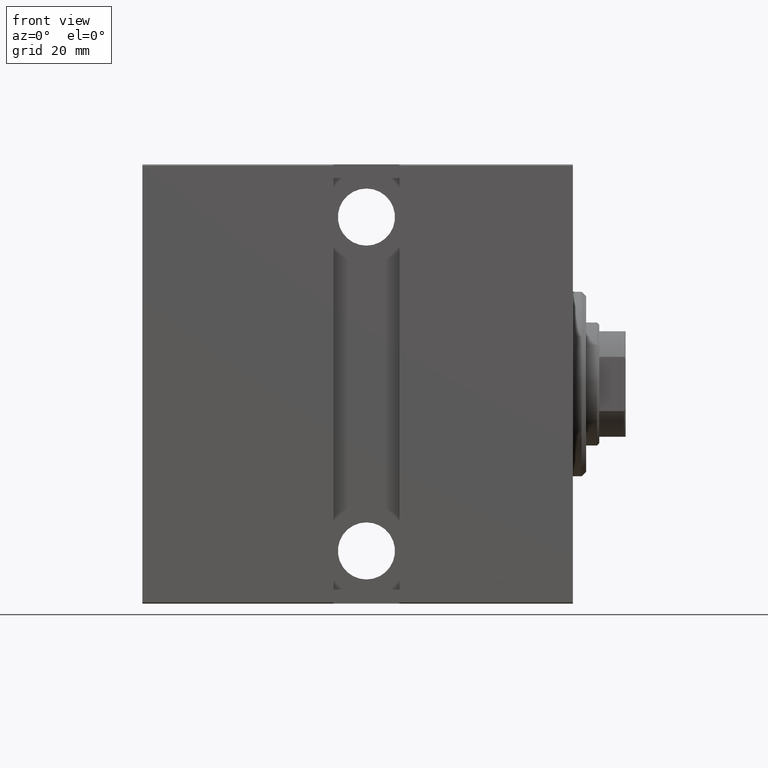
[diagram: clean part render]
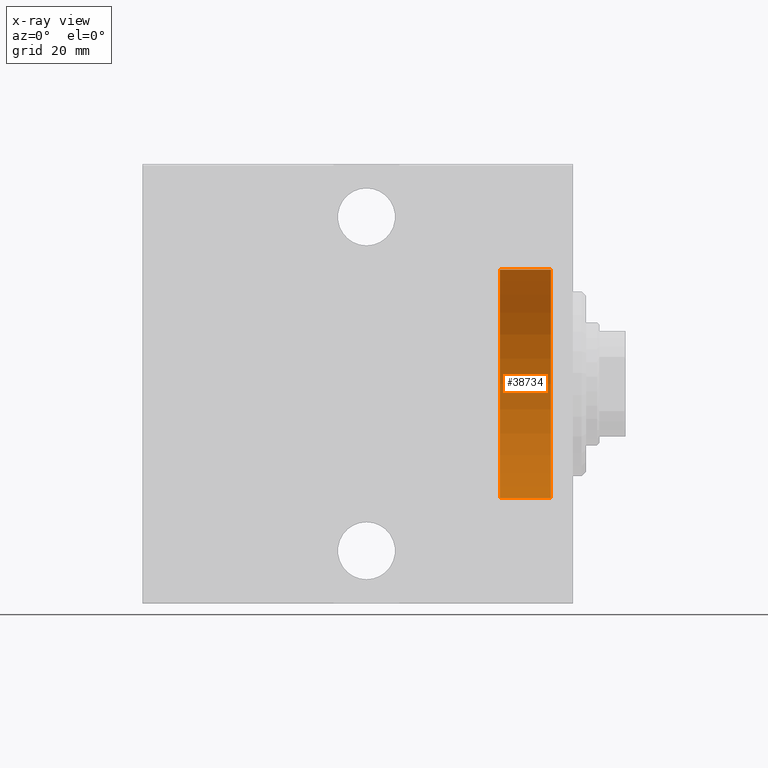
[diagram: x-ray — body ghosted, one internal face saturated and labeled with its STEP entity id]
A machine part, front view, then the same camera in x-ray: the body is ghosted and one INTERNAL B-rep face — a face not visible from any outside direction — is saturated and labeled: STEP entity #38734.
In plain terms, the highlighted cylindrical surface (partial cylindrical patch) has radius 26 mm, axis along (1, 0, 0).
Its self-contained STEP definition (entity closure, byte-faithful):
#50 = LINE ( 'NONE', #26042, #34952 ) ;
#87 = CARTESIAN_POINT ( 'NONE',  ( -16.60000000000000142, 3.184081677783117796E-15, 26.00000000000000355 ) ) ;
#1064 = DIRECTION ( 'NONE',  ( 1.000000000000000000, -0.000000000000000000, -0.000000000000000000 ) ) ;
#5234 = CARTESIAN_POINT ( 'NONE',  ( -5.000000000000000888, 0.000000000000000000, 0.000000000000000000 ) ) ;
#6214 = VERTEX_POINT ( 'NONE', #10892 ) ;
#7452 = DIRECTION ( 'NONE',  ( -1.000000000000000000, 0.000000000000000000, 0.000000000000000000 ) ) ;
#10408 = AXIS2_PLACEMENT_3D ( 'NONE', #23698, #7452, #10694 ) ;
#10694 = DIRECTION ( 'NONE',  ( 0.000000000000000000, 0.000000000000000000, 1.000000000000000000 ) ) ;
#10892 = CARTESIAN_POINT ( 'NONE',  ( -16.60000000000000142, 0.000000000000000000, -26.00000000000000355 ) ) ;
#11445 = EDGE_CURVE ( 'NONE', #6214, #39080, #50, .T. ) ;
#13126 = CIRCLE ( 'NONE', #35290, 26.00000000000000355 ) ;
#14140 = DIRECTION ( 'NONE',  ( 1.000000000000000000, -0.000000000000000000, -0.000000000000000000 ) ) ;
#16028 = DIRECTION ( 'NONE',  ( -1.000000000000000000, -0.000000000000000000, -0.000000000000000000 ) ) ;
#18245 = VECTOR ( 'NONE', #14140, 1000.000000000000000 ) ;
#19714 = ORIENTED_EDGE ( 'NONE', *, *, #33195, .F. ) ;
#19828 = ORIENTED_EDGE ( 'NONE', *, *, #27656, .T. ) ;
#20090 = FACE_OUTER_BOUND ( 'NONE', #35323, .T. ) ;
#20786 = CIRCLE ( 'NONE', #10408, 26.00000000000000355 ) ;
#21539 = CARTESIAN_POINT ( 'NONE',  ( -5.000000000000000888, 0.000000000000000000, -26.00000000000000355 ) ) ;
#23698 = CARTESIAN_POINT ( 'NONE',  ( -16.60000000000000142, 0.000000000000000000, 0.000000000000000000 ) ) ;
#26042 = CARTESIAN_POINT ( 'NONE',  ( -16.60000000000000142, 0.000000000000000000, -26.00000000000000355 ) ) ;
#27263 = CYLINDRICAL_SURFACE ( 'NONE', #32703, 26.00000000000000355 ) ;
#27370 = LINE ( 'NONE', #37535, #18245 ) ;
#27656 = EDGE_CURVE ( 'NONE', #39100, #39080, #13126, .T. ) ;
#30345 = VERTEX_POINT ( 'NONE', #87 ) ;
#30515 = CARTESIAN_POINT ( 'NONE',  ( -16.60000000000000142, 0.000000000000000000, 0.000000000000000000 ) ) ;
#32703 = AXIS2_PLACEMENT_3D ( 'NONE', #30515, #1064, #37427 ) ;
#33195 = EDGE_CURVE ( 'NONE', #30345, #6214, #20786, .T. ) ;
#34952 = VECTOR ( 'NONE', #42719, 1000.000000000000000 ) ;
#35198 = CARTESIAN_POINT ( 'NONE',  ( -5.000000000000000888, 3.184081677783117796E-15, 26.00000000000000355 ) ) ;
#35290 = AXIS2_PLACEMENT_3D ( 'NONE', #5234, #16028, #38583 ) ;
#35323 = EDGE_LOOP ( 'NONE', ( #19714, #42697, #19828, #36111 ) ) ;
#36111 = ORIENTED_EDGE ( 'NONE', *, *, #11445, .F. ) ;
#37427 = DIRECTION ( 'NONE',  ( 0.000000000000000000, 0.000000000000000000, -1.000000000000000000 ) ) ;
#37535 = CARTESIAN_POINT ( 'NONE',  ( -16.60000000000000142, 3.184081677783117796E-15, 26.00000000000000355 ) ) ;
#38583 = DIRECTION ( 'NONE',  ( 0.000000000000000000, 0.000000000000000000, -1.000000000000000000 ) ) ;
#38734 = ADVANCED_FACE ( 'NONE', ( #20090 ), #27263, .T. ) ;
#39080 = VERTEX_POINT ( 'NONE', #21539 ) ;
#39100 = VERTEX_POINT ( 'NONE', #35198 ) ;
#42697 = ORIENTED_EDGE ( 'NONE', *, *, #42791, .T. ) ;
#42719 = DIRECTION ( 'NONE',  ( 1.000000000000000000, -0.000000000000000000, -0.000000000000000000 ) ) ;
#42791 = EDGE_CURVE ( 'NONE', #30345, #39100, #27370, .T. ) ;